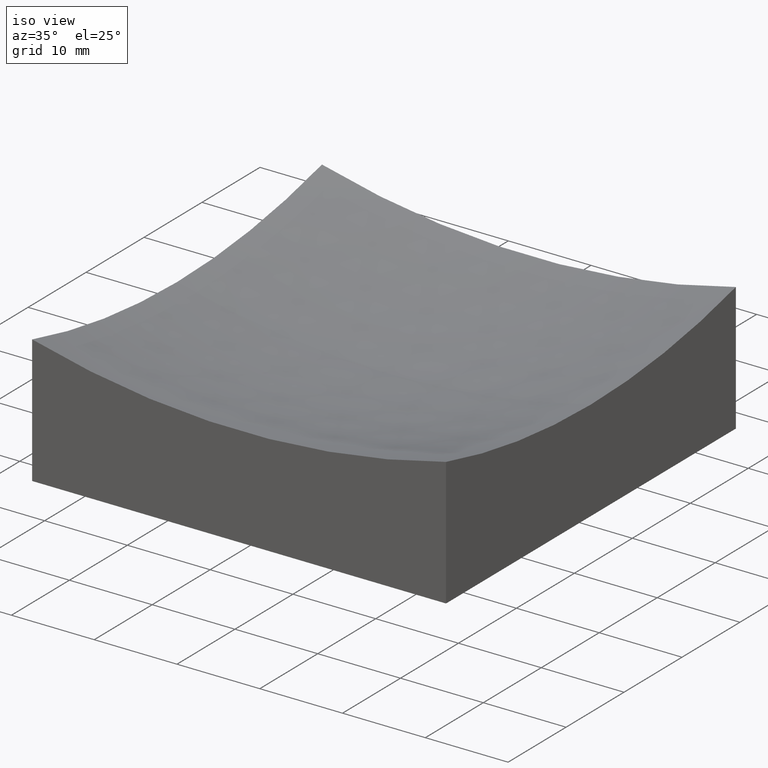
[diagram: clean part render]
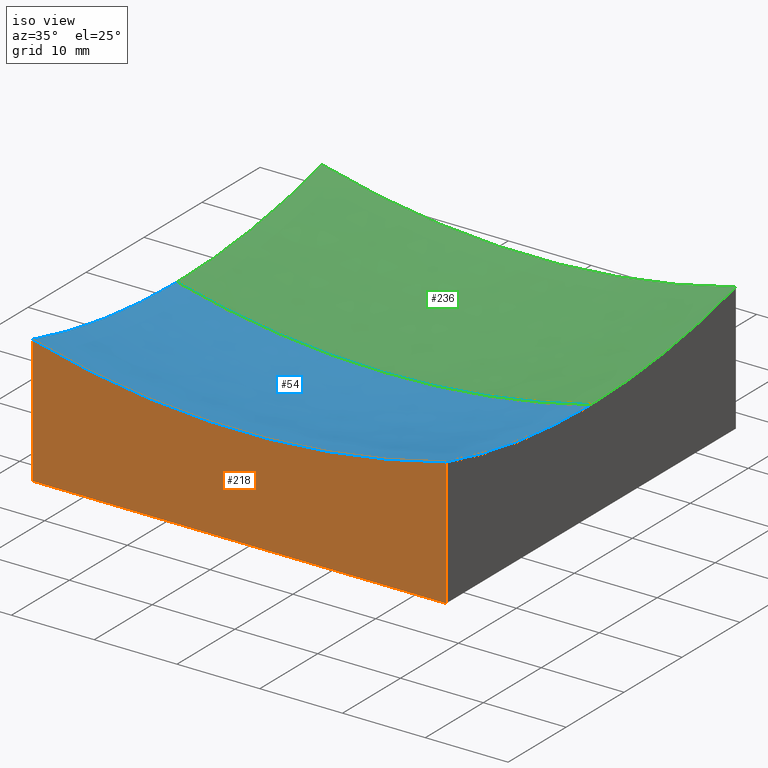
[diagram: same view with three faces highlighted in distinct colors, each labeled with its STEP entity id]
A machine part, iso view with three faces highlighted in distinct colors.
Their STEP definitions:

[orange] entity #218 — the highlighted planar face has unit normal (0, 1, 0).
#3 = EDGE_CURVE ( 'NONE', #17, #194, #18, .T. ) ;
#17 = VERTEX_POINT ( 'NONE', #38 ) ;
#18 = LINE ( 'NONE', #153, #162 ) ;
#21 = ORIENTED_EDGE ( 'NONE', *, *, #46, .T. ) ;
#24 = CARTESIAN_POINT ( 'NONE',  ( -25.00000000000000000, -25.00000000000000711, 50.00000000000000000 ) ) ;
#27 = CARTESIAN_POINT ( 'NONE',  ( -25.00000000000000000, -25.00000000000000711, 50.00000000000000000 ) ) ;
#36 = EDGE_CURVE ( 'NONE', #176, #37, #63, .T. ) ;
#37 = VERTEX_POINT ( 'NONE', #160 ) ;
#38 = CARTESIAN_POINT ( 'NONE',  ( -25.00000000000000000, -25.00000000000000711, 0.0000000000000000000 ) ) ;
#41 = CARTESIAN_POINT ( 'NONE',  ( 25.00000000000000000, -25.00000000000000711, 50.00000000000000000 ) ) ;
#45 = DIRECTION ( 'NONE',  ( -0.0000000000000000000, -0.0000000000000000000, -1.000000000000000000 ) ) ;
#46 = EDGE_CURVE ( 'NONE', #37, #17, #183, .T. ) ;
#48 = DIRECTION ( 'NONE',  ( 0.0000000000000000000, -0.0000000000000000000, 1.000000000000000000 ) ) ;
#53 = VECTOR ( 'NONE', #45, 1000.000000000000000 ) ;
#58 = VECTOR ( 'NONE', #108, 1000.000000000000000 ) ;
#63 = CIRCLE ( 'NONE', #211, 96.82458365518536425 ) ;
#67 = DIRECTION ( 'NONE',  ( 0.0000000000000000000, 0.0000000000000000000, 1.000000000000000000 ) ) ;
#76 = EDGE_LOOP ( 'NONE', ( #100, #191, #21, #152 ) ) ;
#85 = FACE_OUTER_BOUND ( 'NONE', #76, .T. ) ;
#100 = ORIENTED_EDGE ( 'NONE', *, *, #171, .F. ) ;
#108 = DIRECTION ( 'NONE',  ( -0.0000000000000000000, -0.0000000000000000000, -1.000000000000000000 ) ) ;
#114 = AXIS2_PLACEMENT_3D ( 'NONE', #27, #205, #48 ) ;
#152 = ORIENTED_EDGE ( 'NONE', *, *, #3, .T. ) ;
#153 = CARTESIAN_POINT ( 'NONE',  ( -25.00000000000000000, -25.00000000000000711, 0.0000000000000000000 ) ) ;
#160 = CARTESIAN_POINT ( 'NONE',  ( -25.00000000000000000, -25.00000000000000711, 15.45856533065151339 ) ) ;
#162 = VECTOR ( 'NONE', #252, 1000.000000000000000 ) ;
#171 = EDGE_CURVE ( 'NONE', #176, #194, #220, .T. ) ;
#176 = VERTEX_POINT ( 'NONE', #202 ) ;
#180 = CARTESIAN_POINT ( 'NONE',  ( 25.00000000000000000, -25.00000000000000711, 0.0000000000000000000 ) ) ;
#183 = LINE ( 'NONE', #24, #58 ) ;
#191 = ORIENTED_EDGE ( 'NONE', *, *, #36, .T. ) ;
#194 = VERTEX_POINT ( 'NONE', #180 ) ;
#197 = CARTESIAN_POINT ( 'NONE',  ( 1.334865011070615797E-14, -25.00000000000000711, 108.9999999999999858 ) ) ;
#202 = CARTESIAN_POINT ( 'NONE',  ( 25.00000000000000000, -25.00000000000000711, 15.45856533065151339 ) ) ;
#203 = PLANE ( 'NONE',  #114 ) ;
#205 = DIRECTION ( 'NONE',  ( 0.0000000000000000000, 1.000000000000000000, 0.0000000000000000000 ) ) ;
#211 = AXIS2_PLACEMENT_3D ( 'NONE', #197, #230, #67 ) ;
#218 = ADVANCED_FACE ( 'NONE', ( #85 ), #203, .F. ) ;
#220 = LINE ( 'NONE', #41, #53 ) ;
#230 = DIRECTION ( 'NONE',  ( 0.0000000000000000000, 1.000000000000000000, 0.0000000000000000000 ) ) ;
#252 = DIRECTION ( 'NONE',  ( 1.000000000000000000, 0.0000000000000000000, 0.0000000000000000000 ) ) ;

[blue] entity #54 — the highlighted spherical surface has radius 100 mm.
#4 = DIRECTION ( 'NONE',  ( 1.000000000000000000, 0.0000000000000000000, 2.775557561562892830E-16 ) ) ;
#6 = DIRECTION ( 'NONE',  ( 0.0000000000000000000, -1.000000000000000000, 0.0000000000000000000 ) ) ;
#7 = CIRCLE ( 'NONE', #88, 99.99999999999994316 ) ;
#9 = SPHERICAL_SURFACE ( 'NONE', #189, 99.99999999999994316 ) ;
#19 = AXIS2_PLACEMENT_3D ( 'NONE', #121, #141, #199 ) ;
#25 = DIRECTION ( 'NONE',  ( -7.166458808248768397E-17, 1.000000000000000000, 0.0000000000000000000 ) ) ;
#36 = EDGE_CURVE ( 'NONE', #176, #37, #63, .T. ) ;
#37 = VERTEX_POINT ( 'NONE', #160 ) ;
#50 = VERTEX_POINT ( 'NONE', #83 ) ;
#54 = ADVANCED_FACE ( 'NONE', ( #140 ), #9, .F. ) ;
#63 = CIRCLE ( 'NONE', #211, 96.82458365518536425 ) ;
#67 = DIRECTION ( 'NONE',  ( 0.0000000000000000000, 0.0000000000000000000, 1.000000000000000000 ) ) ;
#70 = DIRECTION ( 'NONE',  ( -1.000000000000000000, 1.224646799147353207E-16, 0.0000000000000000000 ) ) ;
#71 = VERTEX_POINT ( 'NONE', #198 ) ;
#77 = EDGE_LOOP ( 'NONE', ( #155, #174, #145, #97, #225 ) ) ;
#81 = DIRECTION ( 'NONE',  ( 0.0000000000000000000, 0.0000000000000000000, -1.000000000000000000 ) ) ;
#83 = CARTESIAN_POINT ( 'NONE',  ( 4.581509298830655131E-14, 0.0000000000000000000, 9.000000000000035527 ) ) ;
#88 = AXIS2_PLACEMENT_3D ( 'NONE', #188, #93, #70 ) ;
#93 = DIRECTION ( 'NONE',  ( 1.224646799147353207E-16, 1.000000000000000000, 3.226112643644443288E-32 ) ) ;
#97 = ORIENTED_EDGE ( 'NONE', *, *, #36, .F. ) ;
#103 = AXIS2_PLACEMENT_3D ( 'NONE', #178, #216, #25 ) ;
#104 = CARTESIAN_POINT ( 'NONE',  ( -25.00000000000000000, 3.061616997868388565E-15, 12.17541634481461621 ) ) ;
#120 = CARTESIAN_POINT ( 'NONE',  ( 1.334865011070615797E-14, 0.0000000000000000000, 108.9999999999999858 ) ) ;
#121 = CARTESIAN_POINT ( 'NONE',  ( 24.99999999999999645, 1.734723475976805911E-15, 108.9999999999999858 ) ) ;
#127 = CIRCLE ( 'NONE', #19, 96.82458365518536425 ) ;
#136 = EDGE_CURVE ( 'NONE', #50, #71, #201, .T. ) ;
#140 = FACE_OUTER_BOUND ( 'NONE', #77, .T. ) ;
#141 = DIRECTION ( 'NONE',  ( 1.000000000000000000, 6.938893903907228378E-17, -0.0000000000000000000 ) ) ;
#145 = ORIENTED_EDGE ( 'NONE', *, *, #164, .F. ) ;
#149 = VERTEX_POINT ( 'NONE', #104 ) ;
#155 = ORIENTED_EDGE ( 'NONE', *, *, #136, .F. ) ;
#157 = DIRECTION ( 'NONE',  ( -0.0000000000000000000, 1.000000000000000000, 0.0000000000000000000 ) ) ;
#160 = CARTESIAN_POINT ( 'NONE',  ( -25.00000000000000000, -25.00000000000000711, 15.45856533065151339 ) ) ;
#164 = EDGE_CURVE ( 'NONE', #37, #149, #233, .T. ) ;
#174 = ORIENTED_EDGE ( 'NONE', *, *, #226, .T. ) ;
#176 = VERTEX_POINT ( 'NONE', #202 ) ;
#178 = CARTESIAN_POINT ( 'NONE',  ( -25.00000000000000355, -1.734723475976808278E-15, 108.9999999999999858 ) ) ;
#188 = CARTESIAN_POINT ( 'NONE',  ( 1.334865011070615797E-14, 0.0000000000000000000, 108.9999999999999858 ) ) ;
#189 = AXIS2_PLACEMENT_3D ( 'NONE', #200, #157, #4 ) ;
#193 = EDGE_CURVE ( 'NONE', #176, #71, #127, .T. ) ;
#197 = CARTESIAN_POINT ( 'NONE',  ( 1.334865011070615797E-14, -25.00000000000000711, 108.9999999999999858 ) ) ;
#198 = CARTESIAN_POINT ( 'NONE',  ( 24.99999999999999289, -9.629649721936179265E-32, 12.17541634481461621 ) ) ;
#199 = DIRECTION ( 'NONE',  ( -7.166458808248768397E-17, 1.000000000000000000, 0.0000000000000000000 ) ) ;
#200 = CARTESIAN_POINT ( 'NONE',  ( 1.334865011070615797E-14, 0.0000000000000000000, 108.9999999999999858 ) ) ;
#201 = CIRCLE ( 'NONE', #207, 99.99999999999994316 ) ;
#202 = CARTESIAN_POINT ( 'NONE',  ( 25.00000000000000000, -25.00000000000000711, 15.45856533065151339 ) ) ;
#207 = AXIS2_PLACEMENT_3D ( 'NONE', #120, #6, #81 ) ;
#211 = AXIS2_PLACEMENT_3D ( 'NONE', #197, #230, #67 ) ;
#216 = DIRECTION ( 'NONE',  ( 1.000000000000000000, 6.938893903907228378E-17, -0.0000000000000000000 ) ) ;
#225 = ORIENTED_EDGE ( 'NONE', *, *, #193, .T. ) ;
#226 = EDGE_CURVE ( 'NONE', #50, #149, #7, .T. ) ;
#230 = DIRECTION ( 'NONE',  ( 0.0000000000000000000, 1.000000000000000000, 0.0000000000000000000 ) ) ;
#233 = CIRCLE ( 'NONE', #103, 96.82458365518536425 ) ;

[green] entity #236 — the highlighted spherical surface has radius 100 mm.
#6 = DIRECTION ( 'NONE',  ( 0.0000000000000000000, -1.000000000000000000, 0.0000000000000000000 ) ) ;
#7 = CIRCLE ( 'NONE', #88, 99.99999999999994316 ) ;
#15 = CIRCLE ( 'NONE', #99, 96.82458365518536425 ) ;
#22 = CARTESIAN_POINT ( 'NONE',  ( 24.99999999999999645, 1.734723475976805911E-15, 108.9999999999999858 ) ) ;
#29 = CIRCLE ( 'NONE', #182, 96.82458365518536425 ) ;
#31 = DIRECTION ( 'NONE',  ( -0.0000000000000000000, 1.000000000000000000, 0.0000000000000000000 ) ) ;
#40 = CARTESIAN_POINT ( 'NONE',  ( 24.99999999999999645, 24.99999999999999645, 15.45856533065151339 ) ) ;
#50 = VERTEX_POINT ( 'NONE', #83 ) ;
#51 = FACE_OUTER_BOUND ( 'NONE', #73, .T. ) ;
#64 = DIRECTION ( 'NONE',  ( -7.166458808248768397E-17, 1.000000000000000000, 0.0000000000000000000 ) ) ;
#66 = CARTESIAN_POINT ( 'NONE',  ( -25.00000000000000355, -1.734723475976808278E-15, 108.9999999999999858 ) ) ;
#69 = ORIENTED_EDGE ( 'NONE', *, *, #144, .T. ) ;
#70 = DIRECTION ( 'NONE',  ( -1.000000000000000000, 1.224646799147353207E-16, 0.0000000000000000000 ) ) ;
#71 = VERTEX_POINT ( 'NONE', #198 ) ;
#73 = EDGE_LOOP ( 'NONE', ( #173, #154, #112, #69, #250 ) ) ;
#81 = DIRECTION ( 'NONE',  ( 0.0000000000000000000, 0.0000000000000000000, -1.000000000000000000 ) ) ;
#83 = CARTESIAN_POINT ( 'NONE',  ( 4.581509298830655131E-14, 0.0000000000000000000, 9.000000000000035527 ) ) ;
#87 = DIRECTION ( 'NONE',  ( 1.000000000000000000, 6.938893903907228378E-17, -0.0000000000000000000 ) ) ;
#88 = AXIS2_PLACEMENT_3D ( 'NONE', #188, #93, #70 ) ;
#90 = DIRECTION ( 'NONE',  ( 1.000000000000000000, 0.0000000000000000000, 2.775557561562892830E-16 ) ) ;
#93 = DIRECTION ( 'NONE',  ( 1.224646799147353207E-16, 1.000000000000000000, 3.226112643644443288E-32 ) ) ;
#99 = AXIS2_PLACEMENT_3D ( 'NONE', #22, #138, #64 ) ;
#104 = CARTESIAN_POINT ( 'NONE',  ( -25.00000000000000000, 3.061616997868388565E-15, 12.17541634481461621 ) ) ;
#107 = CARTESIAN_POINT ( 'NONE',  ( -25.00000000000000711, 24.99999999999999645, 15.45856533065151339 ) ) ;
#110 = SPHERICAL_SURFACE ( 'NONE', #244, 99.99999999999994316 ) ;
#112 = ORIENTED_EDGE ( 'NONE', *, *, #126, .T. ) ;
#118 = EDGE_CURVE ( 'NONE', #149, #210, #177, .T. ) ;
#120 = CARTESIAN_POINT ( 'NONE',  ( 1.334865011070615797E-14, 0.0000000000000000000, 108.9999999999999858 ) ) ;
#126 = EDGE_CURVE ( 'NONE', #71, #166, #15, .T. ) ;
#136 = EDGE_CURVE ( 'NONE', #50, #71, #201, .T. ) ;
#138 = DIRECTION ( 'NONE',  ( 1.000000000000000000, 6.938893903907228378E-17, -0.0000000000000000000 ) ) ;
#142 = DIRECTION ( 'NONE',  ( 0.0000000000000000000, 1.000000000000000000, 0.0000000000000000000 ) ) ;
#143 = DIRECTION ( 'NONE',  ( -7.166458808248768397E-17, 1.000000000000000000, 0.0000000000000000000 ) ) ;
#144 = EDGE_CURVE ( 'NONE', #166, #210, #29, .T. ) ;
#149 = VERTEX_POINT ( 'NONE', #104 ) ;
#154 = ORIENTED_EDGE ( 'NONE', *, *, #136, .T. ) ;
#158 = DIRECTION ( 'NONE',  ( 0.0000000000000000000, 0.0000000000000000000, 1.000000000000000000 ) ) ;
#159 = CARTESIAN_POINT ( 'NONE',  ( 1.334865011070615797E-14, 24.99999999999999645, 108.9999999999999858 ) ) ;
#166 = VERTEX_POINT ( 'NONE', #40 ) ;
#169 = CARTESIAN_POINT ( 'NONE',  ( 1.334865011070615797E-14, 0.0000000000000000000, 108.9999999999999858 ) ) ;
#172 = AXIS2_PLACEMENT_3D ( 'NONE', #66, #87, #143 ) ;
#173 = ORIENTED_EDGE ( 'NONE', *, *, #226, .F. ) ;
#177 = CIRCLE ( 'NONE', #172, 96.82458365518536425 ) ;
#182 = AXIS2_PLACEMENT_3D ( 'NONE', #159, #142, #158 ) ;
#188 = CARTESIAN_POINT ( 'NONE',  ( 1.334865011070615797E-14, 0.0000000000000000000, 108.9999999999999858 ) ) ;
#198 = CARTESIAN_POINT ( 'NONE',  ( 24.99999999999999289, -9.629649721936179265E-32, 12.17541634481461621 ) ) ;
#201 = CIRCLE ( 'NONE', #207, 99.99999999999994316 ) ;
#207 = AXIS2_PLACEMENT_3D ( 'NONE', #120, #6, #81 ) ;
#210 = VERTEX_POINT ( 'NONE', #107 ) ;
#226 = EDGE_CURVE ( 'NONE', #50, #149, #7, .T. ) ;
#236 = ADVANCED_FACE ( 'NONE', ( #51 ), #110, .F. ) ;
#244 = AXIS2_PLACEMENT_3D ( 'NONE', #169, #31, #90 ) ;
#250 = ORIENTED_EDGE ( 'NONE', *, *, #118, .F. ) ;